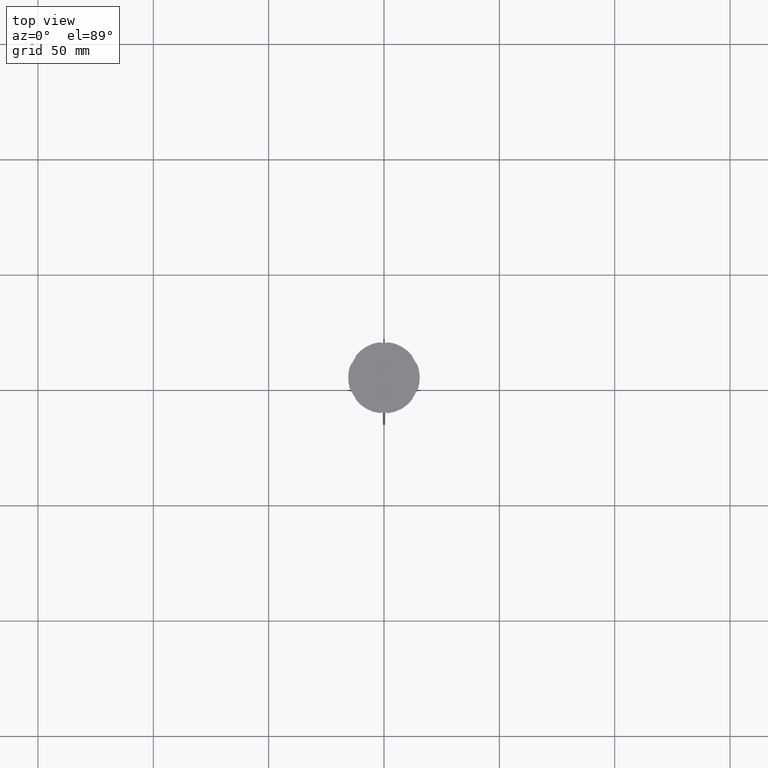
[diagram: clean part render]
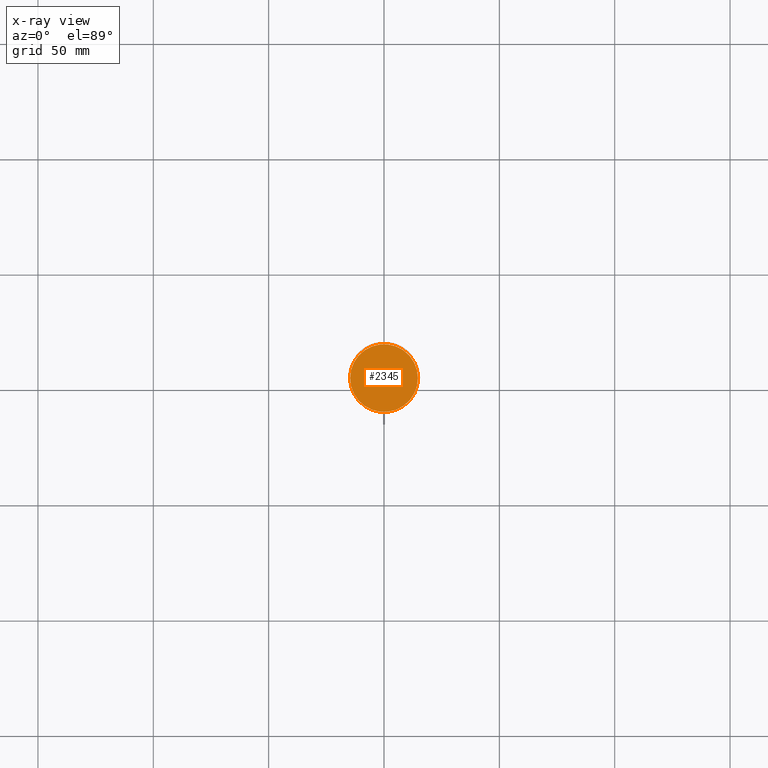
[diagram: x-ray — body ghosted, one internal face saturated and labeled with its STEP entity id]
A machine part, top view, then the same camera in x-ray: the body is ghosted and one INTERNAL B-rep face — a face not visible from any outside direction — is saturated and labeled: STEP entity #2345.
In plain terms, the highlighted planar face has unit normal (0, 0, -1).
Its self-contained STEP definition (entity closure, byte-faithful):
#220 = EDGE_LOOP ( 'NONE', ( #822, #1401 ) ) ;
#247 = VERTEX_POINT ( 'NONE', #1901 ) ;
#257 = DIRECTION ( 'NONE',  ( -0.000000000000000000, -0.000000000000000000, 1.000000000000000000 ) ) ;
#393 = VERTEX_POINT ( 'NONE', #1712 ) ;
#565 = CIRCLE ( 'NONE', #2143, 14.70000000000000107 ) ;
#704 = PLANE ( 'NONE',  #1720 ) ;
#739 = FACE_OUTER_BOUND ( 'NONE', #220, .T. ) ;
#822 = ORIENTED_EDGE ( 'NONE', *, *, #2329, .T. ) ;
#943 = DIRECTION ( 'NONE',  ( 0.000000000000000000, 0.000000000000000000, -1.000000000000000000 ) ) ;
#987 = CIRCLE ( 'NONE', #1354, 14.70000000000000107 ) ;
#1354 = AXIS2_PLACEMENT_3D ( 'NONE', #2524, #257, #2506 ) ;
#1381 = CARTESIAN_POINT ( 'NONE',  ( 0.000000000000000000, 0.000000000000000000, -12.00000000000000000 ) ) ;
#1401 = ORIENTED_EDGE ( 'NONE', *, *, #2060, .T. ) ;
#1470 = CARTESIAN_POINT ( 'NONE',  ( 0.000000000000000000, 0.000000000000000000, -12.00000000000000000 ) ) ;
#1712 = CARTESIAN_POINT ( 'NONE',  ( -14.70000000000000107, 0.000000000000000000, -12.00000000000000000 ) ) ;
#1720 = AXIS2_PLACEMENT_3D ( 'NONE', #1381, #943, #2025 ) ;
#1901 = CARTESIAN_POINT ( 'NONE',  ( 14.70000000000000107, 1.818600496733819553E-15, -12.00000000000000000 ) ) ;
#2025 = DIRECTION ( 'NONE',  ( -1.000000000000000000, 0.000000000000000000, -0.000000000000000000 ) ) ;
#2060 = EDGE_CURVE ( 'NONE', #247, #393, #565, .T. ) ;
#2143 = AXIS2_PLACEMENT_3D ( 'NONE', #1470, #2769, #2368 ) ;
#2329 = EDGE_CURVE ( 'NONE', #393, #247, #987, .T. ) ;
#2345 = ADVANCED_FACE ( 'NONE', ( #739 ), #704, .F. ) ;
#2368 = DIRECTION ( 'NONE',  ( -1.000000000000000000, 0.000000000000000000, 0.000000000000000000 ) ) ;
#2506 = DIRECTION ( 'NONE',  ( -1.000000000000000000, 0.000000000000000000, 0.000000000000000000 ) ) ;
#2524 = CARTESIAN_POINT ( 'NONE',  ( 0.000000000000000000, 0.000000000000000000, -12.00000000000000000 ) ) ;
#2769 = DIRECTION ( 'NONE',  ( -0.000000000000000000, -0.000000000000000000, 1.000000000000000000 ) ) ;